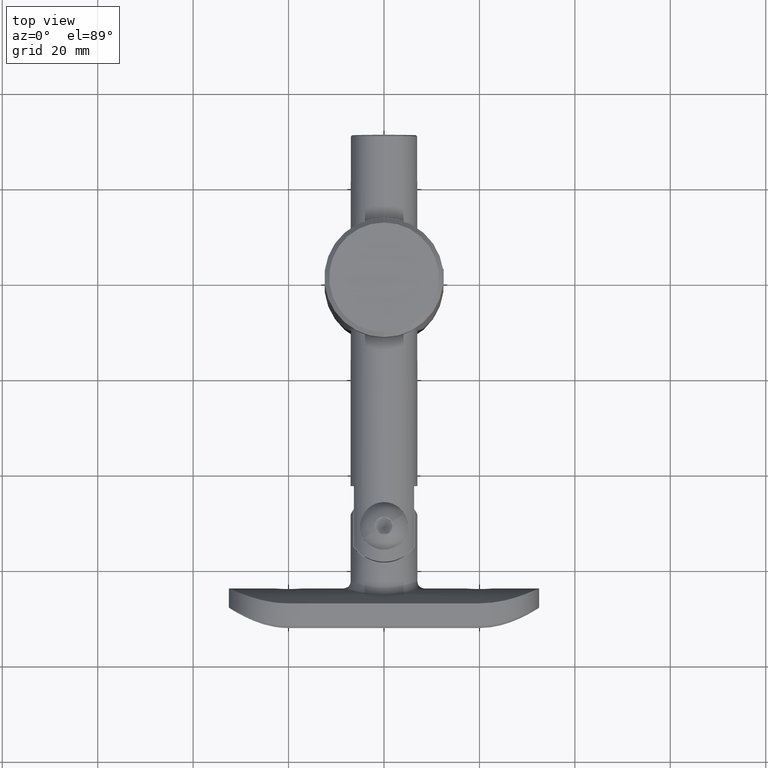
[diagram: clean part render]
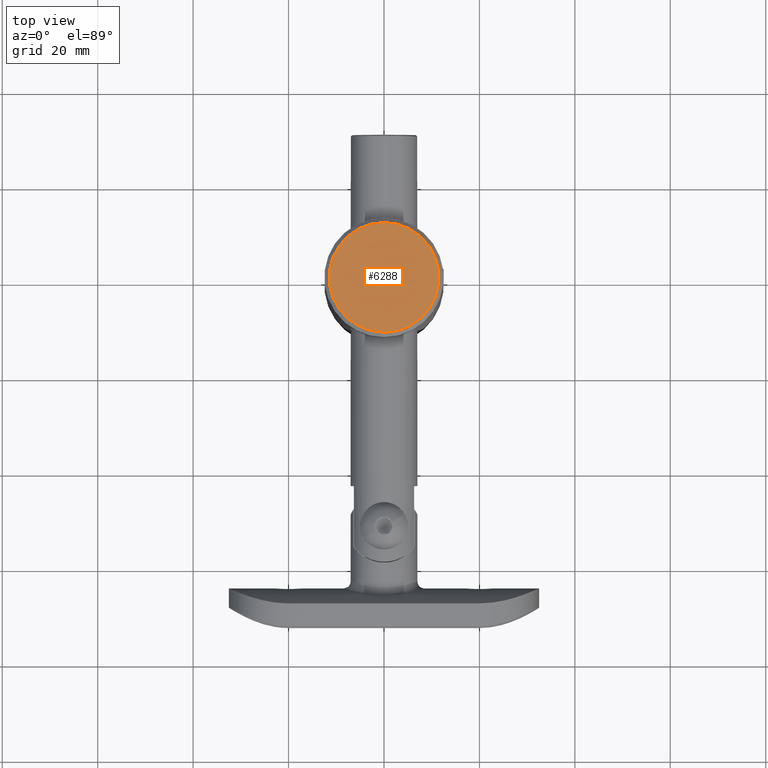
[diagram: same view with one face highlighted and labeled with its STEP entity id]
A machine part, top view. The second image highlights one B-rep face of the part: STEP entity #6288.
In plain terms, the highlighted planar face has unit normal (0, -0, 1).
Its self-contained STEP definition (entity closure, byte-faithful):
#3103 = EDGE_CURVE ( 'NONE', #4146, #17740, #14894, .T. ) ;
#3893 = FACE_OUTER_BOUND ( 'NONE', #4814, .T. ) ;
#4146 = VERTEX_POINT ( 'NONE', #6445 ) ;
#4814 = EDGE_LOOP ( 'NONE', ( #9536, #17243 ) ) ;
#5042 = AXIS2_PLACEMENT_3D ( 'NONE', #15464, #12188, #12111 ) ;
#5476 = DIRECTION ( 'NONE',  ( 0.000000000000000000, -1.098045870766271941E-16, 1.000000000000000000 ) ) ;
#6288 = ADVANCED_FACE ( 'NONE', ( #3893 ), #8560, .T. ) ;
#6445 = CARTESIAN_POINT ( 'NONE',  ( 1.469576158976824736E-15, -11.50000000000001599, 88.00000000000000000 ) ) ;
#7007 = DIRECTION ( 'NONE',  ( 0.000000000000000000, -1.000000000000000000, 0.000000000000000000 ) ) ;
#8560 = PLANE ( 'NONE',  #21123 ) ;
#9492 = CARTESIAN_POINT ( 'NONE',  ( 0.000000000000000000, 11.50000000000000178, 88.00000000000000000 ) ) ;
#9536 = ORIENTED_EDGE ( 'NONE', *, *, #15598, .T. ) ;
#11058 = CIRCLE ( 'NONE', #13867, 11.50000000000000888 ) ;
#12111 = DIRECTION ( 'NONE',  ( 0.000000000000000000, -1.000000000000000000, 0.000000000000000000 ) ) ;
#12188 = DIRECTION ( 'NONE',  ( 0.000000000000000000, -1.098045870766271941E-16, 1.000000000000000000 ) ) ;
#13523 = DIRECTION ( 'NONE',  ( 0.000000000000000000, -1.000000000000000000, -1.098045870766271941E-16 ) ) ;
#13867 = AXIS2_PLACEMENT_3D ( 'NONE', #15204, #15345, #7007 ) ;
#14894 = CIRCLE ( 'NONE', #5042, 11.50000000000000888 ) ;
#15105 = CARTESIAN_POINT ( 'NONE',  ( 0.000000000000000000, -6.938893903907228378E-15, 88.00000000000000000 ) ) ;
#15204 = CARTESIAN_POINT ( 'NONE',  ( 0.000000000000000000, -6.938893903907228378E-15, 88.00000000000000000 ) ) ;
#15345 = DIRECTION ( 'NONE',  ( 0.000000000000000000, -1.098045870766271941E-16, 1.000000000000000000 ) ) ;
#15464 = CARTESIAN_POINT ( 'NONE',  ( 0.000000000000000000, -6.938893903907228378E-15, 88.00000000000000000 ) ) ;
#15598 = EDGE_CURVE ( 'NONE', #17740, #4146, #11058, .T. ) ;
#17243 = ORIENTED_EDGE ( 'NONE', *, *, #3103, .T. ) ;
#17740 = VERTEX_POINT ( 'NONE', #9492 ) ;
#21123 = AXIS2_PLACEMENT_3D ( 'NONE', #15105, #5476, #13523 ) ;